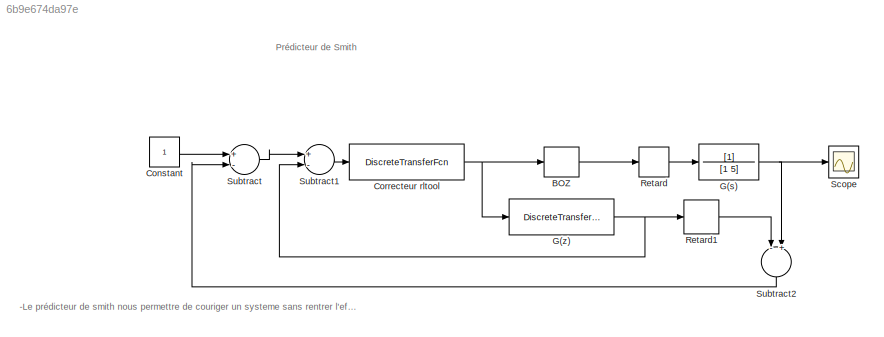
MODEL slx_6b9e674da97e
KIND model
CONFIG AbsTol = auto
CONFIG EnableMultiTasking = on
CONFIG FixedStep = auto
CONFIG MaxStep = 0.01
CONFIG MinStep = auto
CONFIG RelTol = 1e-3
CONFIG SampleTimeConstraint = Unconstrained
CONFIG Solver = ode45
CONFIG SolverName = ode45
CONFIG StartTime = 0.0
CONFIG StopTime = 5.0
BLOCK [ZeroOrderHold] BOZ
  SampleTime = 0.1
BLOCK [Constant] Constant
BLOCK [DiscreteTransferFcn] Correcteur rltool
  Denominator = [1 -1]
  InputPortMap = u0
  Numerator = [12.7081   -7.7075]
  Ports = [1, 1]
  SampleTime = 0.1
BLOCK [TransferFcn] G(s)
  Denominator = [1 5]
BLOCK [DiscreteTransferFcn] G(z)
  Denominator = [1 -0.6065]
  InputPortMap = u0
  Numerator = [0.07869]
  Ports = [1, 1]
  SampleTime = 0.1
BLOCK [TransportDelay] Retard
  Ports = [1, 1]
BLOCK [Delay] Retard1
  DelayLength = 10
  InputPortMap = u0
  InputProcessing = Inherited
  Ports = [1, 1]
  SampleTime = 0.1
  UserDataPersistent = on
BLOCK [Scope] Scope
  NumInputPorts = 1
  Ports = [1]
  ScopeSpecificationString = Simulink.scopes.TimeScopeBlockCfg('CurrentConfiguration', extmgr.ConfigurationSet(extmgr.Configuration('Core','General UI',true),extmgr.Configuration('Core','Source UI',true),extmgr.Configuration('Sources','WiredSimulink',true,'DataLoggingSaveFormat','StructureWithTime','DataLoggingLimitDataPoints',true,'DataLoggingDecimation','1','DataLoggingDecimateData',true),extmgr.Configuration('Visuals','Tim...<+1662ch>
BLOCK [Sum] Subtract
  InputSameDT = off
  Inputs = +-
  OutDataTypeStr = Inherit: Inherit via internal rule
  Ports = [2, 1]
  SaturateOnIntegerOverflow = off
BLOCK [Sum] Subtract1
  InputSameDT = off
  Inputs = +-
  OutDataTypeStr = Inherit: Inherit via internal rule
  Ports = [2, 1]
  SaturateOnIntegerOverflow = off
BLOCK [Sum] Subtract2
  InputSameDT = off
  Inputs = -+
  OutDataTypeStr = Inherit: Inherit via internal rule
  Ports = [2, 1]
  SaturateOnIntegerOverflow = off
ANNOTATION (root): -Le prédicteur de smith nous permettre de couriger un systeme sans rentrer l'effet du retard
ANNOTATION (root): Prédicteur de Smith
LINE BOZ:1 -> Retard:1
LINE Constant:1 -> Subtract:1
NET Correcteur rltool:1 -> BOZ:1, G(z):1
NET G(s):1 -> Scope:1, Subtract2:2
NET G(z):1 -> Retard1:1, Subtract1:2
LINE Retard1:1 -> Subtract2:1
LINE Retard:1 -> G(s):1
LINE Subtract1:1 -> Correcteur rltool:1
LINE Subtract2:1 -> Subtract:2
LINE Subtract:1 -> Subtract1:1
note: NET lines group one-source signal fan-out (src -> all destinations, sorted); 1:1 wires keep LINE
